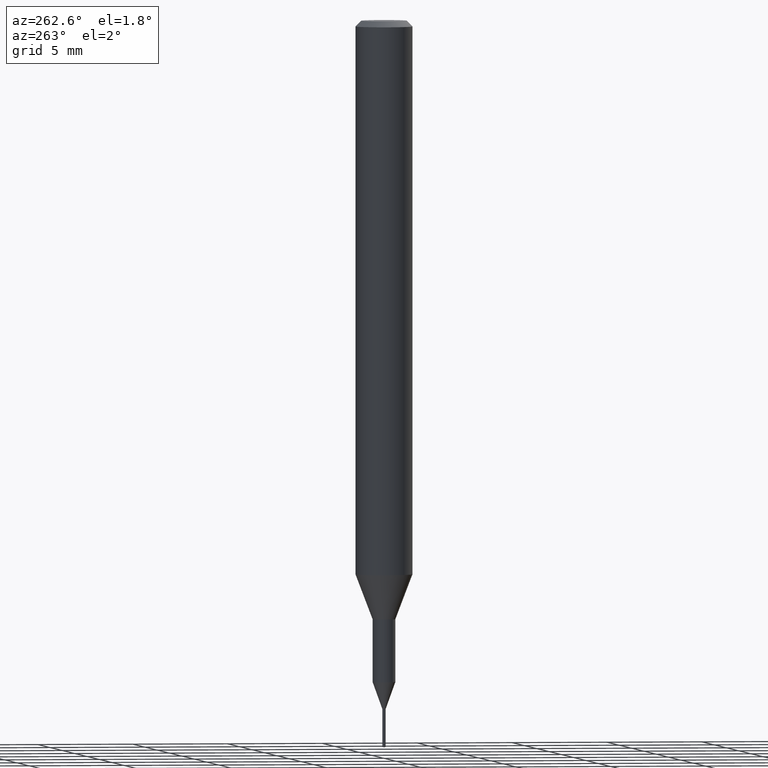
[diagram: clean part render]
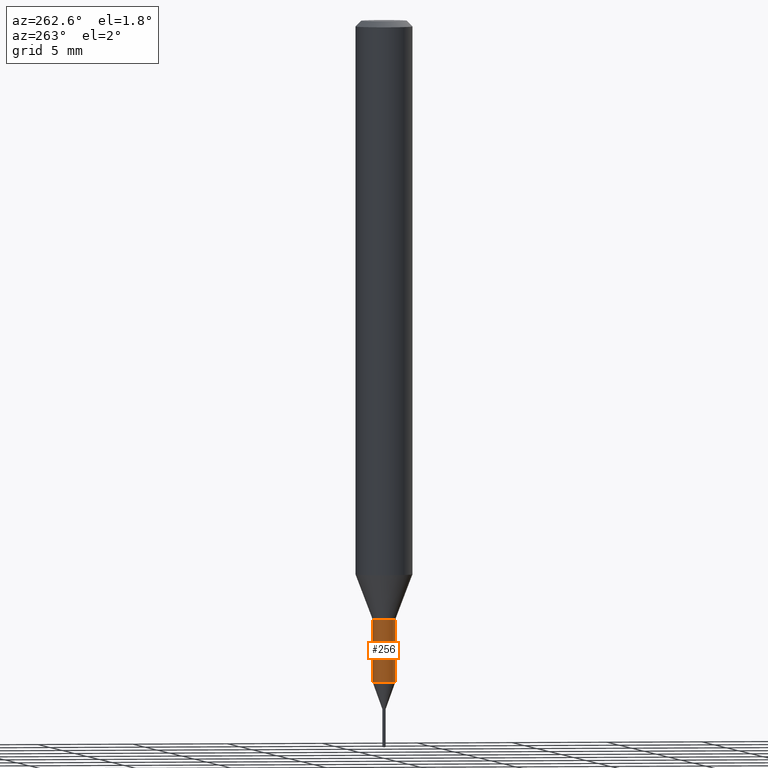
[diagram: same view with one face highlighted and labeled with its STEP entity id]
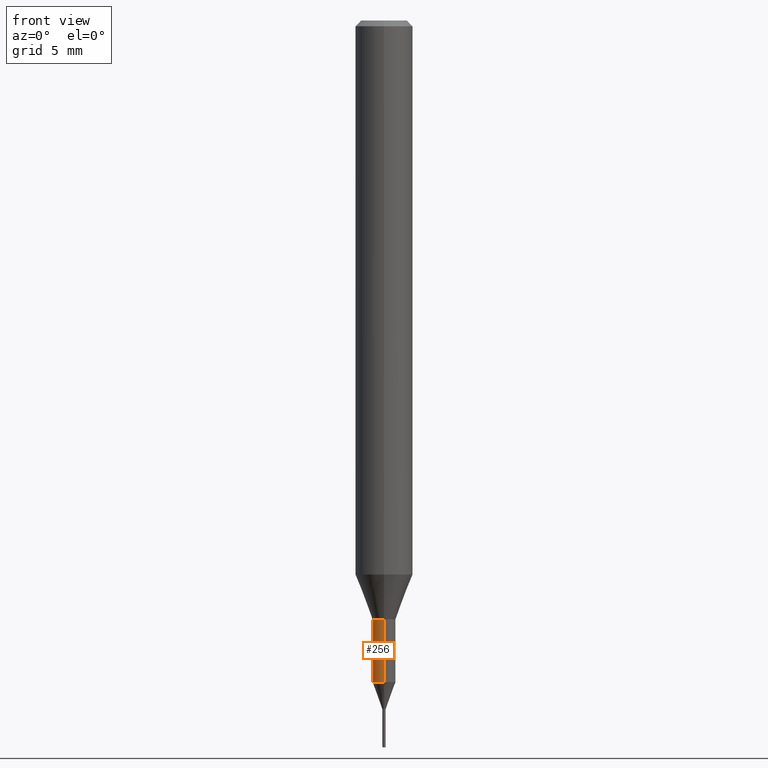
[diagram: same view with one face highlighted and labeled with its STEP entity id]
A machine part, auxiliary view. The second image highlights one B-rep face of the part: STEP entity #256.
A second angle (front view) of the same face is appended — the face is thin or edge-on in the first view.
In plain terms, the highlighted cylindrical surface (edge-blend (fillet) strip) has radius 0.5999 mm, axis along (-0, -0, 1).
Its self-contained STEP definition (entity closure, byte-faithful):
#116=EDGE_CURVE('',#254,#266,#293,.T.);
#130=VERTEX_POINT('',#310);
#144=EDGE_CURVE('',#130,#226,#324,.T.);
#158=EDGE_CURVE('',#254,#226,#340,.T.);
#218=EDGE_CURVE('',#266,#130,#407,.T.);
#226=VERTEX_POINT('',#415);
#254=VERTEX_POINT('',#447);
#256=ADVANCED_FACE('',(#449),#450,.T.);
#266=VERTEX_POINT('',#464);
#293=LINE('',#486,#487);
#310=CARTESIAN_POINT('',(0.0,0.59995,-31.3));
#324=LINE('',#529,#530);
#340=CIRCLE('',#551,0.59995);
#407=CIRCLE('',#637,0.59995);
#415=CARTESIAN_POINT('',(0.0,0.59995,-34.585));
#447=CARTESIAN_POINT('',(7.34702581975735E-017,-0.59995,-34.585));
#449=FACE_OUTER_BOUND('',#689,.T.);
#450=CYLINDRICAL_SURFACE('',#690,0.59995);
#464=CARTESIAN_POINT('',(7.34702581975735E-017,-0.59995,-31.3));
#486=CARTESIAN_POINT('',(7.34702581975735E-017,-0.59995,-32.9425));
#487=VECTOR('',#714,1.0);
#529=CARTESIAN_POINT('',(-7.34702581975735E-017,0.59995,-32.9425));
#530=VECTOR('',#751,1.0);
#551=AXIS2_PLACEMENT_3D('',#773,#774,#775);
#637=AXIS2_PLACEMENT_3D('',#858,#859,#860);
#689=EDGE_LOOP('',(#899,#900,#901,#902));
#690=AXIS2_PLACEMENT_3D('',#903,#904,#905);
#714=DIRECTION('',(-0.0,-0.0,1.0));
#751=DIRECTION('',(0.0,0.0,-1.0));
#773=CARTESIAN_POINT('',(0.0,0.0,-34.585));
#774=DIRECTION('',(0.0,0.0,-1.0));
#775=DIRECTION('',(0.0,1.0,0.0));
#858=CARTESIAN_POINT('',(0.0,0.0,-31.3));
#859=DIRECTION('',(0.0,0.0,-1.0));
#860=DIRECTION('',(0.0,1.0,0.0));
#899=ORIENTED_EDGE('',*,*,#144,.T.);
#900=ORIENTED_EDGE('',*,*,#158,.F.);
#901=ORIENTED_EDGE('',*,*,#116,.T.);
#902=ORIENTED_EDGE('',*,*,#218,.T.);
#903=CARTESIAN_POINT('',(0.0,0.0,-32.9425));
#904=DIRECTION('',(-0.0,-0.0,1.0));
#905=DIRECTION('',(0.0,1.0,0.0));